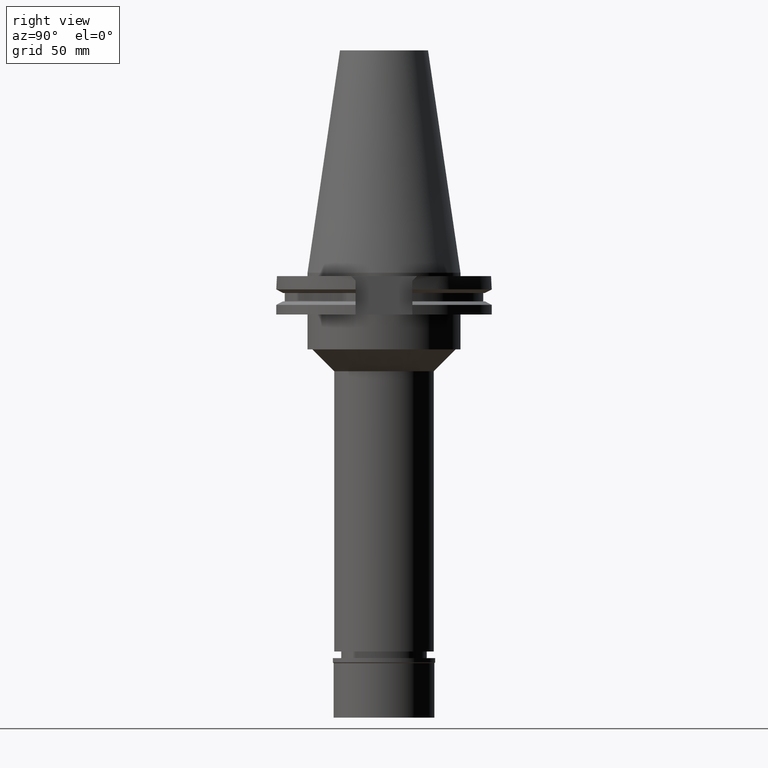
[diagram: clean part render]
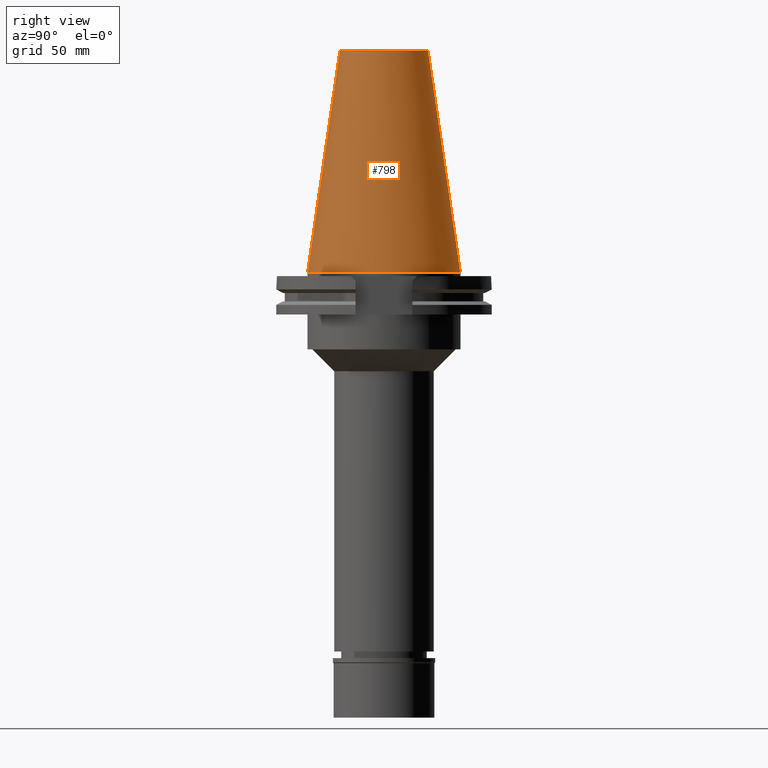
[diagram: same view with one face highlighted and labeled with its STEP entity id]
A machine part, right view. The second image highlights one B-rep face of the part: STEP entity #798.
In plain terms, the highlighted conical surface has half-angle 8.297 deg.
Its self-contained STEP definition (entity closure, byte-faithful):
#78 = AXIS2_PLACEMENT_3D ( 'NONE', #1677, #2209, #639 ) ;
#225 = ORIENTED_EDGE ( 'NONE', *, *, #278, .F. ) ;
#278 = EDGE_CURVE ( 'NONE', #746, #1440, #679, .T. ) ;
#356 = CIRCLE ( 'NONE', #3032, 20.10832422388000040 ) ;
#394 = CARTESIAN_POINT ( 'NONE',  ( 0.0000000000000000000, 34.92499999999999716, 4.689582056016999490E-13 ) ) ;
#412 = DIRECTION ( 'NONE',  ( 0.0000000000000000000, 0.0000000000000000000, -1.000000000000000000 ) ) ;
#615 = CARTESIAN_POINT ( 'NONE',  ( 0.0000000000000000000, 1.846767373113999857E-14, 50.79999999999999716 ) ) ;
#639 = DIRECTION ( 'NONE',  ( 0.0000000000000000000, 1.000000000000000000, 0.0000000000000000000 ) ) ;
#656 = CARTESIAN_POINT ( 'NONE',  ( 0.0000000000000000000, 20.10832422387000307, 101.5999999999999943 ) ) ;
#679 = CIRCLE ( 'NONE', #78, 34.92499999999999716 ) ;
#746 = VERTEX_POINT ( 'NONE', #394 ) ;
#798 = ADVANCED_FACE ( 'NONE', ( #2714 ), #1380, .T. ) ;
#1071 = AXIS2_PLACEMENT_3D ( 'NONE', #615, #412, #1421 ) ;
#1219 = VECTOR ( 'NONE', #1956, 1000.000000000000114 ) ;
#1235 = ORIENTED_EDGE ( 'NONE', *, *, #2515, .F. ) ;
#1286 = ORIENTED_EDGE ( 'NONE', *, *, #2305, .T. ) ;
#1318 = ORIENTED_EDGE ( 'NONE', *, *, #3062, .T. ) ;
#1380 = CONICAL_SURFACE ( 'NONE', #1071, 27.51666211194000056, 0.1448125860318199565 ) ;
#1421 = DIRECTION ( 'NONE',  ( 0.0000000000000000000, -1.000000000000000000, 0.0000000000000000000 ) ) ;
#1440 = VERTEX_POINT ( 'NONE', #2175 ) ;
#1575 = CARTESIAN_POINT ( 'NONE',  ( 0.0000000000000000000, 1.846767373113999857E-14, 101.5999999999999943 ) ) ;
#1656 = VERTEX_POINT ( 'NONE', #3300 ) ;
#1677 = CARTESIAN_POINT ( 'NONE',  ( 0.0000000000000000000, 1.846767373113999857E-14, 8.242295734816999588E-13 ) ) ;
#1686 = VERTEX_POINT ( 'NONE', #2030 ) ;
#1796 = EDGE_LOOP ( 'NONE', ( #1286, #1318, #225, #1235 ) ) ;
#1831 = DIRECTION ( 'NONE',  ( 0.0000000000000000000, 1.000000000000000000, 0.0000000000000000000 ) ) ;
#1956 = DIRECTION ( 'NONE',  ( 0.0000000000000000000, 0.1443069799456937474, -0.9895329683941577192 ) ) ;
#1967 = CARTESIAN_POINT ( 'NONE',  ( 0.0000000000000000000, -20.10832422387000307, 101.5999999999999943 ) ) ;
#2030 = CARTESIAN_POINT ( 'NONE',  ( 0.0000000000000000000, 20.10832422388000040, 101.5999999999999943 ) ) ;
#2175 = CARTESIAN_POINT ( 'NONE',  ( 0.0000000000000000000, -34.92499999999999716, 4.689582056016999490E-13 ) ) ;
#2209 = DIRECTION ( 'NONE',  ( 0.0000000000000000000, 0.0000000000000000000, -1.000000000000000000 ) ) ;
#2305 = EDGE_CURVE ( 'NONE', #1686, #1656, #356, .T. ) ;
#2353 = DIRECTION ( 'NONE',  ( 0.0000000000000000000, 0.0000000000000000000, -1.000000000000000000 ) ) ;
#2473 = DIRECTION ( 'NONE',  ( 0.0000000000000000000, -0.1443069799456937474, -0.9895329683941577192 ) ) ;
#2515 = EDGE_CURVE ( 'NONE', #1686, #746, #3208, .T. ) ;
#2536 = VECTOR ( 'NONE', #2473, 1000.000000000000114 ) ;
#2714 = FACE_OUTER_BOUND ( 'NONE', #1796, .T. ) ;
#2986 = LINE ( 'NONE', #1967, #2536 ) ;
#3032 = AXIS2_PLACEMENT_3D ( 'NONE', #1575, #2353, #1831 ) ;
#3062 = EDGE_CURVE ( 'NONE', #1656, #1440, #2986, .T. ) ;
#3208 = LINE ( 'NONE', #656, #1219 ) ;
#3300 = CARTESIAN_POINT ( 'NONE',  ( 0.0000000000000000000, -20.10832422388000040, 101.5999999999999943 ) ) ;